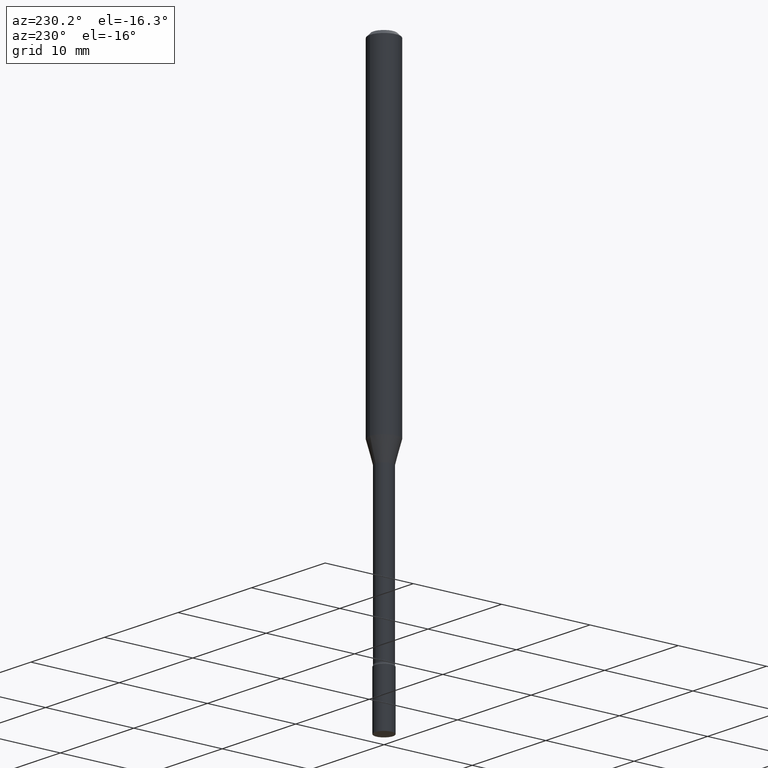
[diagram: clean part render]
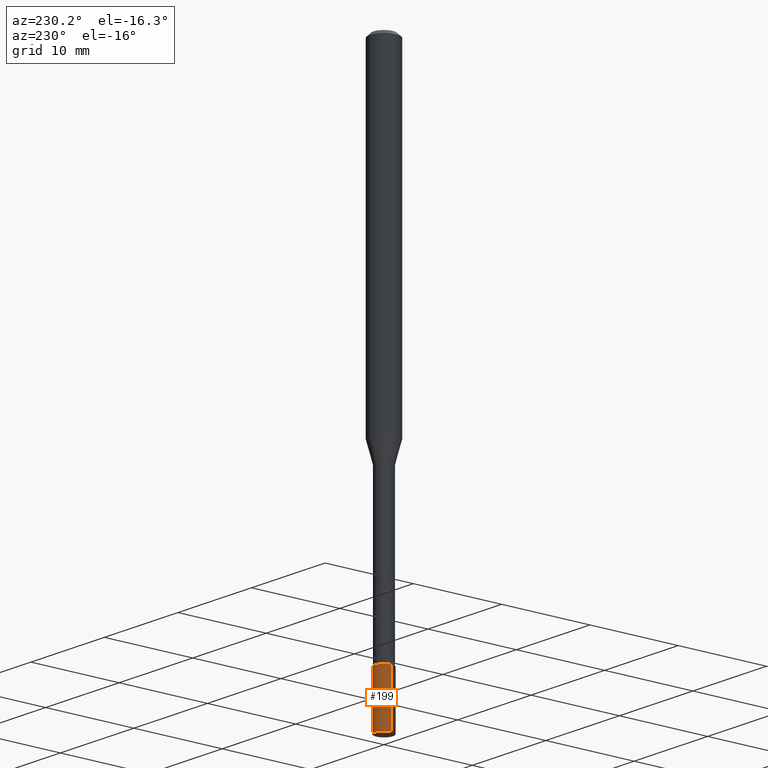
[diagram: same view with one face highlighted and labeled with its STEP entity id]
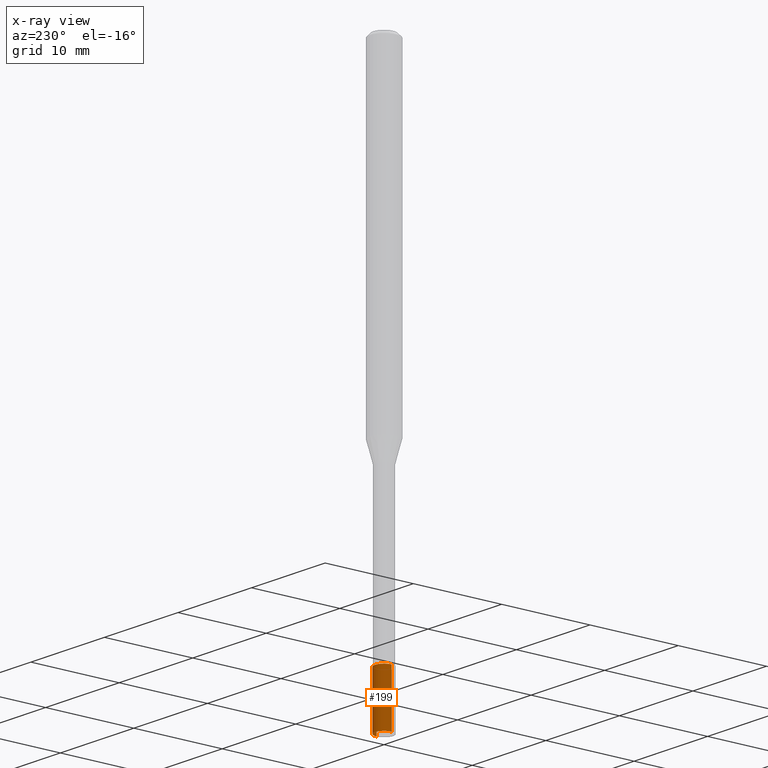
[diagram: x-ray of the same camera — body ghosted, the highlighted face saturated]
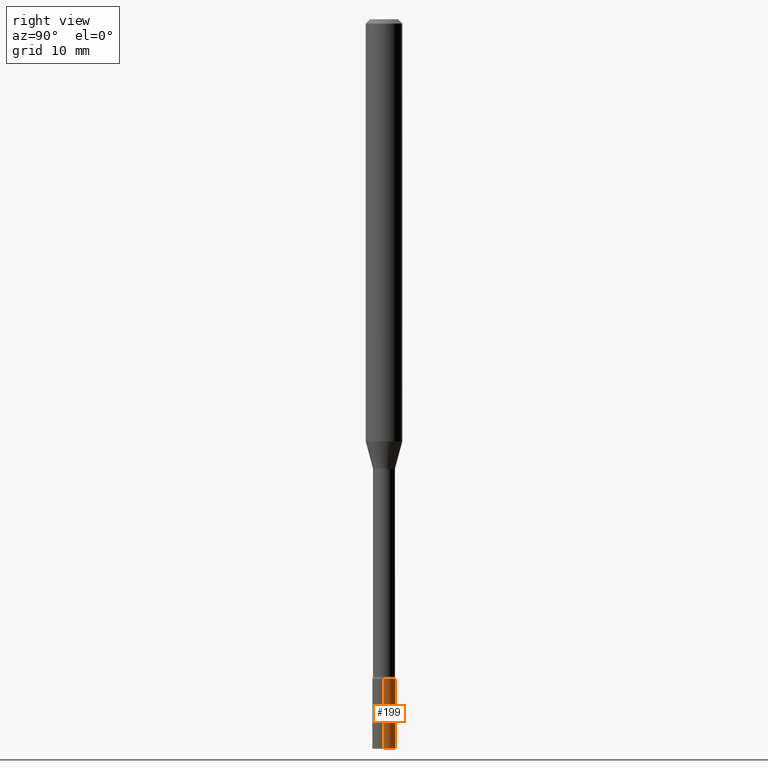
[diagram: same view with one face highlighted and labeled with its STEP entity id]
A machine part, auxiliary view. The second image highlights one B-rep face of the part: STEP entity #199.
The next image is the same camera in x-ray: the body ghosted, the highlighted face saturated — about 0% of this face is hidden behind the body in this view.
A second angle (right view) of the same face is appended — the face is thin or edge-on in the first view.
In plain terms, the highlighted cylindrical surface (edge-blend (fillet) strip) has radius 1.016 mm, axis along (-0, 0, 1).
Its self-contained STEP definition (entity closure, byte-faithful):
#5 = VECTOR ( 'NONE', #238, 39.37007874015748143 ) ;
#26 = EDGE_CURVE ( 'NONE', #451, #480, #363, .T. ) ;
#30 = CARTESIAN_POINT ( 'NONE',  ( 0.04000000000000000083, -2.793185071074506290E-16, 1.950470710318374387E-30 ) ) ;
#32 = EDGE_LOOP ( 'NONE', ( #264, #462, #74, #414 ) ) ;
#47 = LINE ( 'NONE', #118, #5 ) ;
#68 = CIRCLE ( 'NONE', #269, 0.04000000000000000083 ) ;
#74 = ORIENTED_EDGE ( 'NONE', *, *, #26, .F. ) ;
#76 = CARTESIAN_POINT ( 'NONE',  ( 5.526759501978408888E-29, -7.890747825785510097E-15, -2.260000000000000231 ) ) ;
#89 = EDGE_CURVE ( 'NONE', #365, #165, #68, .T. ) ;
#112 = DIRECTION ( 'NONE',  ( -2.445468806185136597E-29, 3.491481338843145583E-15, 1.000000000000000000 ) ) ;
#114 = CARTESIAN_POINT ( 'NONE',  ( 0.04000000000000000083, -8.170066332892960135E-15, -2.260000000000000231 ) ) ;
#117 = DIRECTION ( 'NONE',  ( -2.445468806185136597E-29, 3.491481338843145583E-15, 1.000000000000000000 ) ) ;
#118 = CARTESIAN_POINT ( 'NONE',  ( -0.04000000000000000083, 2.842170943040400803E-16, -1.967574036101962509E-30 ) ) ;
#141 = EDGE_CURVE ( 'NONE', #365, #451, #204, .T. ) ;
#153 = CARTESIAN_POINT ( 'NONE',  ( 6.113672015462842613E-29, -8.728703347107864943E-15, -2.500000000000000000 ) ) ;
#165 = VERTEX_POINT ( 'NONE', #193 ) ;
#193 = CARTESIAN_POINT ( 'NONE',  ( -0.04000000000000000083, -8.025508492142646404E-15, -2.500000000000000000 ) ) ;
#199 = ADVANCED_FACE ( 'NONE', ( #279 ), #476, .T. ) ;
#204 = LINE ( 'NONE', #30, #449 ) ;
#209 = EDGE_CURVE ( 'NONE', #165, #480, #47, .T. ) ;
#210 = AXIS2_PLACEMENT_3D ( 'NONE', #76, #112, #513 ) ;
#238 = DIRECTION ( 'NONE',  ( -2.445468806185136877E-29, 3.491481338843145188E-15, 1.000000000000000000 ) ) ;
#264 = ORIENTED_EDGE ( 'NONE', *, *, #89, .T. ) ;
#269 = AXIS2_PLACEMENT_3D ( 'NONE', #153, #117, #274 ) ;
#272 = CARTESIAN_POINT ( 'NONE',  ( 0.04000000000000000083, -9.008021854215314980E-15, -2.500000000000000000 ) ) ;
#274 = DIRECTION ( 'NONE',  ( 1.000000000000000000, -6.982962677686259611E-15, 0.000000000000000000 ) ) ;
#279 = FACE_OUTER_BOUND ( 'NONE', #32, .T. ) ;
#314 = CARTESIAN_POINT ( 'NONE',  ( 0.000000000000000000, 0.000000000000000000, 0.000000000000000000 ) ) ;
#321 = AXIS2_PLACEMENT_3D ( 'NONE', #314, #345, #441 ) ;
#334 = CARTESIAN_POINT ( 'NONE',  ( -0.04000000000000000083, -8.025508492142646404E-15, -2.260000000000000231 ) ) ;
#345 = DIRECTION ( 'NONE',  ( -2.445468806185136597E-29, 3.491481338843145583E-15, 1.000000000000000000 ) ) ;
#363 = CIRCLE ( 'NONE', #210, 0.04000000000000000083 ) ;
#365 = VERTEX_POINT ( 'NONE', #272 ) ;
#414 = ORIENTED_EDGE ( 'NONE', *, *, #141, .F. ) ;
#441 = DIRECTION ( 'NONE',  ( 1.000000000000000000, -6.982962677686265922E-15, 4.876176775795935793E-29 ) ) ;
#449 = VECTOR ( 'NONE', #516, 39.37007874015748143 ) ;
#451 = VERTEX_POINT ( 'NONE', #114 ) ;
#462 = ORIENTED_EDGE ( 'NONE', *, *, #209, .T. ) ;
#476 = CYLINDRICAL_SURFACE ( 'NONE', #321, 0.04000000000000000083 ) ;
#480 = VERTEX_POINT ( 'NONE', #334 ) ;
#513 = DIRECTION ( 'NONE',  ( 1.000000000000000000, -6.982962677686259611E-15, 0.000000000000000000 ) ) ;
#516 = DIRECTION ( 'NONE',  ( -2.445468806185136877E-29, 3.491481338843145188E-15, 1.000000000000000000 ) ) ;